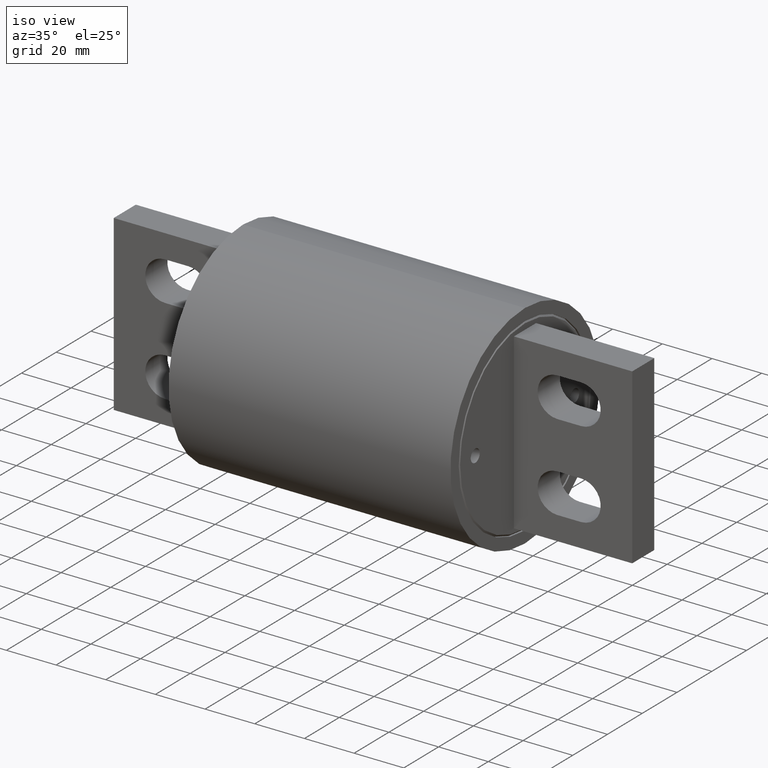
[diagram: clean part render]
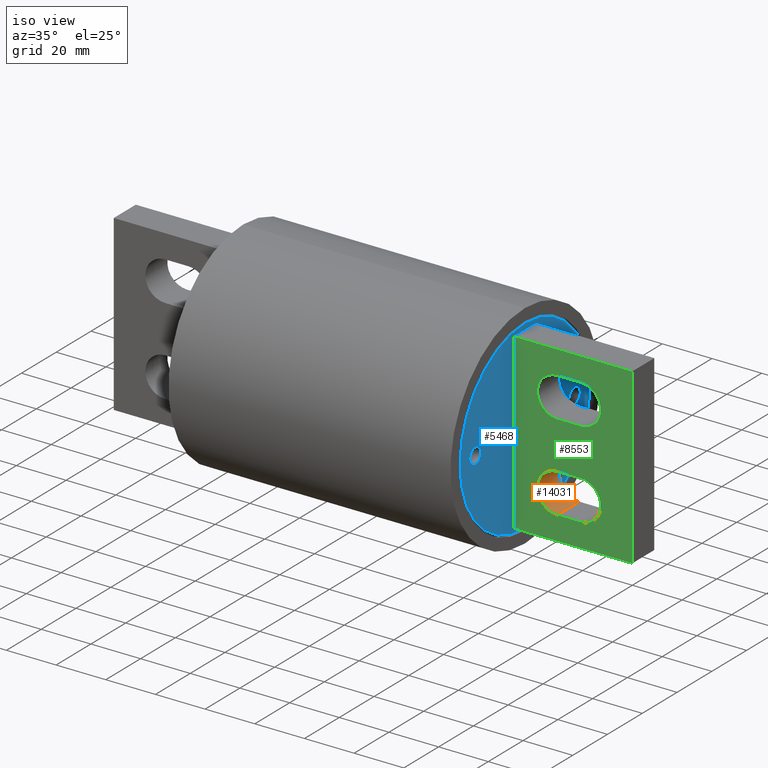
[diagram: same view with three faces highlighted in distinct colors, each labeled with its STEP entity id]
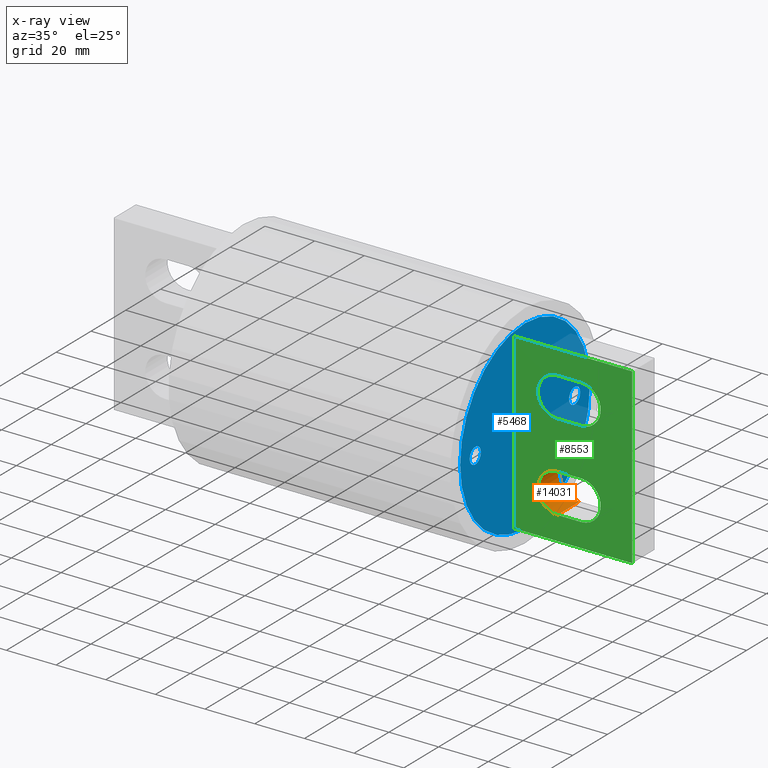
[diagram: x-ray of the same camera — body ghosted, the three highlighted faces saturated]
A machine part, iso view with three faces highlighted in distinct colors.
The next image is the same camera in x-ray (body ghosted, the three faces saturated) — at least one of them is partly hidden behind the body in this view.
Their STEP definitions:

[orange] entity #14031 — the highlighted cylindrical surface (edge-blend (fillet) strip) has radius 7.9375 mm, axis along (-0, -1, 0).
#508 = VERTEX_POINT ( 'NONE', #10394 ) ;
#557 = VECTOR ( 'NONE', #4330, 39.37007874015748100 ) ;
#881 = DIRECTION ( 'NONE',  ( -8.856302872696733300E-017, -1.000000000000000000, 5.504681343597395100E-017 ) ) ;
#1019 = EDGE_CURVE ( 'NONE', #9682, #11043, #7516, .T. ) ;
#1157 = DIRECTION ( 'NONE',  ( -8.856302872696733300E-017, -1.000000000000000000, 5.504681343597395100E-017 ) ) ;
#1758 = CARTESIAN_POINT ( 'NONE',  ( 2.922499999999998500, -0.2500000000000000600, -0.9999999999999993300 ) ) ;
#1910 = LINE ( 'NONE', #13106, #557 ) ;
#2103 = CARTESIAN_POINT ( 'NONE',  ( 2.922499999999998500, 0.2499999999999999700, -0.6874999999999993300 ) ) ;
#2313 = EDGE_CURVE ( 'NONE', #8745, #9682, #1910, .T. ) ;
#2403 = EDGE_CURVE ( 'NONE', #8745, #508, #11620, .T. ) ;
#2616 = AXIS2_PLACEMENT_3D ( 'NONE', #2103, #7184, #6245 ) ;
#2690 = CARTESIAN_POINT ( 'NONE',  ( 2.922499999999998500, 0.2499999999999999700, -0.3749999999999998300 ) ) ;
#2761 = AXIS2_PLACEMENT_3D ( 'NONE', #3628, #881, #4398 ) ;
#3048 = DIRECTION ( 'NONE',  ( 0.0000000000000000000, 1.092739197465705700E-016, 1.000000000000000000 ) ) ;
#3628 = CARTESIAN_POINT ( 'NONE',  ( 2.922499999999998500, -0.2500000000000000600, -0.6874999999999993300 ) ) ;
#3736 = AXIS2_PLACEMENT_3D ( 'NONE', #11274, #4116, #3048 ) ;
#3856 = ORIENTED_EDGE ( 'NONE', *, *, #8217, .F. ) ;
#4116 = DIRECTION ( 'NONE',  ( -8.856302872696733300E-017, -1.000000000000000000, 5.504681343597395100E-017 ) ) ;
#4330 = DIRECTION ( 'NONE',  ( -8.856302872696733300E-017, -1.000000000000000000, 5.504681343597395100E-017 ) ) ;
#4398 = DIRECTION ( 'NONE',  ( 0.0000000000000000000, 1.092739197465705700E-016, 1.000000000000000000 ) ) ;
#4754 = FACE_OUTER_BOUND ( 'NONE', #10181, .T. ) ;
#4856 = LINE ( 'NONE', #8586, #11062 ) ;
#6245 = DIRECTION ( 'NONE',  ( 0.0000000000000000000, -1.092739197465705700E-016, -1.000000000000000000 ) ) ;
#6396 = CYLINDRICAL_SURFACE ( 'NONE', #2616, 0.3124999999999998900 ) ;
#7184 = DIRECTION ( 'NONE',  ( -8.856302872696733300E-017, -1.000000000000000000, 5.504681343597395100E-017 ) ) ;
#7511 = CARTESIAN_POINT ( 'NONE',  ( 2.922499999999998500, -0.2500000000000000600, -0.3749999999999996700 ) ) ;
#7516 = CIRCLE ( 'NONE', #2761, 0.3124999999999998900 ) ;
#8217 = EDGE_CURVE ( 'NONE', #508, #11043, #4856, .T. ) ;
#8586 = CARTESIAN_POINT ( 'NONE',  ( 2.922499999999998500, 0.2499999999999999200, -0.9999999999999993300 ) ) ;
#8745 = VERTEX_POINT ( 'NONE', #2690 ) ;
#9308 = ORIENTED_EDGE ( 'NONE', *, *, #2403, .F. ) ;
#9682 = VERTEX_POINT ( 'NONE', #7511 ) ;
#9719 = ORIENTED_EDGE ( 'NONE', *, *, #1019, .T. ) ;
#10181 = EDGE_LOOP ( 'NONE', ( #9719, #3856, #9308, #11343 ) ) ;
#10394 = CARTESIAN_POINT ( 'NONE',  ( 2.922499999999998500, 0.2499999999999999200, -0.9999999999999993300 ) ) ;
#11043 = VERTEX_POINT ( 'NONE', #1758 ) ;
#11062 = VECTOR ( 'NONE', #1157, 39.37007874015748100 ) ;
#11274 = CARTESIAN_POINT ( 'NONE',  ( 2.922499999999998500, 0.2499999999999999700, -0.6874999999999993300 ) ) ;
#11343 = ORIENTED_EDGE ( 'NONE', *, *, #2313, .T. ) ;
#11620 = CIRCLE ( 'NONE', #3736, 0.3124999999999998900 ) ;
#13106 = CARTESIAN_POINT ( 'NONE',  ( 2.922499999999998500, 0.2499999999999999700, -0.3749999999999998300 ) ) ;
#14031 = ADVANCED_FACE ( 'NONE', ( #4754 ), #6396, .F. ) ;

[blue] entity #5468 — the highlighted planar face has unit normal (-1, -0, -0).
#114 = FACE_BOUND ( 'NONE', #8446, .T. ) ;
#126 = CARTESIAN_POINT ( 'NONE',  ( 2.234500000000001000, -1.125000000000000000, 3.195889402192244700E-016 ) ) ;
#232 = VERTEX_POINT ( 'NONE', #10133 ) ;
#316 = AXIS2_PLACEMENT_3D ( 'NONE', #3499, #11149, #2858 ) ;
#401 = DIRECTION ( 'NONE',  ( 0.0000000000000000000, -3.095585301892937400E-019, -1.000000000000000000 ) ) ;
#583 = CARTESIAN_POINT ( 'NONE',  ( 2.234500000000000600, 3.491018800803510000E-017, -3.844372892951594500E-017 ) ) ;
#629 = ORIENTED_EDGE ( 'NONE', *, *, #4369, .F. ) ;
#880 = VERTEX_POINT ( 'NONE', #9334 ) ;
#917 = CARTESIAN_POINT ( 'NONE',  ( 2.234500000000001000, 1.125000000000000000, -0.1249999999999992900 ) ) ;
#1207 = DIRECTION ( 'NONE',  ( 1.000000000000000000, 7.773569455895544200E-017, -8.847089727481713700E-017 ) ) ;
#1651 = AXIS2_PLACEMENT_3D ( 'NONE', #13655, #14279, #10879 ) ;
#1727 = CIRCLE ( 'NONE', #1651, 0.1249999999999996300 ) ;
#1728 = CARTESIAN_POINT ( 'NONE',  ( 2.234500000000000600, 3.467801911039316000E-017, -0.7500000000000007800 ) ) ;
#1769 = CARTESIAN_POINT ( 'NONE',  ( 2.234500000000000600, 3.512130692562417200E-017, 0.6820000000000007200 ) ) ;
#2160 = ORIENTED_EDGE ( 'NONE', *, *, #9178, .F. ) ;
#2201 = CARTESIAN_POINT ( 'NONE',  ( 2.234500000000000600, 3.491018800803510000E-017, -3.844372892951594500E-017 ) ) ;
#2453 = DIRECTION ( 'NONE',  ( 1.000000000000000000, 7.773569455895544200E-017, -8.847089727481713700E-017 ) ) ;
#2858 = DIRECTION ( 'NONE',  ( 0.0000000000000000000, 3.095585301892545500E-019, 1.000000000000000000 ) ) ;
#2879 = AXIS2_PLACEMENT_3D ( 'NONE', #12906, #13448, #5567 ) ;
#2923 = EDGE_LOOP ( 'NONE', ( #2160, #12887 ) ) ;
#2966 = CARTESIAN_POINT ( 'NONE',  ( 2.234500000000000600, 3.514235690567704100E-017, 0.7500000000000007800 ) ) ;
#3040 = DIRECTION ( 'NONE',  ( 0.0000000000000000000, -3.095585301892937400E-019, -1.000000000000000000 ) ) ;
#3071 = FACE_BOUND ( 'NONE', #5000, .T. ) ;
#3243 = EDGE_LOOP ( 'NONE', ( #6279, #7152 ) ) ;
#3247 = VERTEX_POINT ( 'NONE', #12434 ) ;
#3331 = EDGE_CURVE ( 'NONE', #5672, #10434, #1727, .T. ) ;
#3499 = CARTESIAN_POINT ( 'NONE',  ( 2.234500000000000600, 3.491018800803510000E-017, -3.844372892951594500E-017 ) ) ;
#3618 = CIRCLE ( 'NONE', #5659, 0.06800000000000006000 ) ;
#3761 = CIRCLE ( 'NONE', #5578, 0.06800000000000006000 ) ;
#3846 = CARTESIAN_POINT ( 'NONE',  ( 2.234500000000001000, 1.125000000000000000, 3.202849785804661900E-016 ) ) ;
#4369 = EDGE_CURVE ( 'NONE', #11758, #3247, #13343, .T. ) ;
#4576 = DIRECTION ( 'NONE',  ( 0.0000000000000000000, 0.0000000000000000000, -1.000000000000000000 ) ) ;
#4643 = AXIS2_PLACEMENT_3D ( 'NONE', #583, #5504, #11780 ) ;
#4783 = DIRECTION ( 'NONE',  ( 0.0000000000000000000, -3.095585301892937400E-019, -1.000000000000000000 ) ) ;
#5000 = EDGE_LOOP ( 'NONE', ( #8370, #10661 ) ) ;
#5123 = FACE_BOUND ( 'NONE', #5764, .T. ) ;
#5468 = ADVANCED_FACE ( 'NONE', ( #3071, #5123, #114, #7199, #12430 ), #6091, .F. ) ;
#5504 = DIRECTION ( 'NONE',  ( -1.000000000000000000, -7.773569455895544200E-017, -5.898059818321142900E-017 ) ) ;
#5567 = DIRECTION ( 'NONE',  ( 0.0000000000000000000, 0.0000000000000000000, -1.000000000000000000 ) ) ;
#5578 = AXIS2_PLACEMENT_3D ( 'NONE', #12267, #7968, #401 ) ;
#5646 = CARTESIAN_POINT ( 'NONE',  ( 2.234500000000000600, 3.467801911039316000E-017, -0.7500000000000007800 ) ) ;
#5659 = AXIS2_PLACEMENT_3D ( 'NONE', #2966, #6845, #3040 ) ;
#5672 = VERTEX_POINT ( 'NONE', #6189 ) ;
#5764 = EDGE_LOOP ( 'NONE', ( #629, #6187 ) ) ;
#6081 = CIRCLE ( 'NONE', #12795, 0.06800000000000006000 ) ;
#6091 = PLANE ( 'NONE',  #4643 ) ;
#6187 = ORIENTED_EDGE ( 'NONE', *, *, #10145, .F. ) ;
#6189 = CARTESIAN_POINT ( 'NONE',  ( 2.234500000000001000, 1.124999999999999800, 0.1249999999999998100 ) ) ;
#6279 = ORIENTED_EDGE ( 'NONE', *, *, #7860, .T. ) ;
#6840 = VERTEX_POINT ( 'NONE', #9620 ) ;
#6845 = DIRECTION ( 'NONE',  ( 1.000000000000000000, 7.773569455895544200E-017, -8.847089727481713700E-017 ) ) ;
#6859 = CIRCLE ( 'NONE', #9997, 1.468500000000001500 ) ;
#6970 = VERTEX_POINT ( 'NONE', #13995 ) ;
#7152 = ORIENTED_EDGE ( 'NONE', *, *, #11864, .T. ) ;
#7199 = FACE_BOUND ( 'NONE', #2923, .T. ) ;
#7335 = VERTEX_POINT ( 'NONE', #12776 ) ;
#7504 = CARTESIAN_POINT ( 'NONE',  ( 2.234500000000000600, 3.465696913034029000E-017, -0.8180000000000008400 ) ) ;
#7676 = AXIS2_PLACEMENT_3D ( 'NONE', #126, #13912, #10082 ) ;
#7860 = EDGE_CURVE ( 'NONE', #7335, #880, #6859, .T. ) ;
#7911 = DIRECTION ( 'NONE',  ( 1.000000000000000000, 7.773569455895544200E-017, -8.847089727481713700E-017 ) ) ;
#7968 = DIRECTION ( 'NONE',  ( 1.000000000000000000, 7.773569455895544200E-017, -8.847089727481713700E-017 ) ) ;
#8045 = EDGE_CURVE ( 'NONE', #8647, #232, #3761, .T. ) ;
#8370 = ORIENTED_EDGE ( 'NONE', *, *, #8045, .F. ) ;
#8390 = EDGE_CURVE ( 'NONE', #6840, #6970, #12749, .T. ) ;
#8429 = EDGE_CURVE ( 'NONE', #232, #8647, #3618, .T. ) ;
#8446 = EDGE_LOOP ( 'NONE', ( #11378, #12678 ) ) ;
#8647 = VERTEX_POINT ( 'NONE', #1769 ) ;
#8860 = EDGE_CURVE ( 'NONE', #10434, #5672, #9603, .T. ) ;
#9178 = EDGE_CURVE ( 'NONE', #6970, #6840, #13758, .T. ) ;
#9228 = AXIS2_PLACEMENT_3D ( 'NONE', #5646, #7911, #11437 ) ;
#9334 = CARTESIAN_POINT ( 'NONE',  ( 2.234500000000000600, 2.149612751636251200E-016, -1.468499999999999900 ) ) ;
#9603 = CIRCLE ( 'NONE', #11683, 0.1249999999999996300 ) ;
#9620 = CARTESIAN_POINT ( 'NONE',  ( 2.234500000000001000, -1.125000000000000200, 0.1249999999999998100 ) ) ;
#9776 = CIRCLE ( 'NONE', #316, 1.468500000000001500 ) ;
#9997 = AXIS2_PLACEMENT_3D ( 'NONE', #2201, #1207, #13561 ) ;
#10082 = DIRECTION ( 'NONE',  ( 0.0000000000000000000, 0.0000000000000000000, -1.000000000000000000 ) ) ;
#10133 = CARTESIAN_POINT ( 'NONE',  ( 2.234500000000000600, 3.183065093608857800E-017, 0.8180000000000007300 ) ) ;
#10145 = EDGE_CURVE ( 'NONE', #3247, #11758, #6081, .T. ) ;
#10434 = VERTEX_POINT ( 'NONE', #917 ) ;
#10661 = ORIENTED_EDGE ( 'NONE', *, *, #8429, .F. ) ;
#10879 = DIRECTION ( 'NONE',  ( 0.0000000000000000000, 0.0000000000000000000, -1.000000000000000000 ) ) ;
#11149 = DIRECTION ( 'NONE',  ( 1.000000000000000000, 7.773569455895544200E-017, -8.847089727481713700E-017 ) ) ;
#11378 = ORIENTED_EDGE ( 'NONE', *, *, #8860, .F. ) ;
#11437 = DIRECTION ( 'NONE',  ( 0.0000000000000000000, -3.095585301892937400E-019, -1.000000000000000000 ) ) ;
#11683 = AXIS2_PLACEMENT_3D ( 'NONE', #3846, #2453, #4576 ) ;
#11758 = VERTEX_POINT ( 'NONE', #7504 ) ;
#11780 = DIRECTION ( 'NONE',  ( -5.898059818321142900E-017, 3.095585301892571000E-019, 1.000000000000000000 ) ) ;
#11864 = EDGE_CURVE ( 'NONE', #880, #7335, #9776, .T. ) ;
#12267 = CARTESIAN_POINT ( 'NONE',  ( 2.234500000000000600, 3.514235690567704100E-017, 0.7500000000000007800 ) ) ;
#12430 = FACE_OUTER_BOUND ( 'NONE', #3243, .T. ) ;
#12434 = CARTESIAN_POINT ( 'NONE',  ( 2.234500000000000600, 3.136631314080469000E-017, -0.6820000000000008300 ) ) ;
#12678 = ORIENTED_EDGE ( 'NONE', *, *, #3331, .F. ) ;
#12749 = CIRCLE ( 'NONE', #2879, 0.1249999999999996300 ) ;
#12776 = CARTESIAN_POINT ( 'NONE',  ( 2.234500000000000600, 3.536477470961802000E-017, 1.468500000000001500 ) ) ;
#12795 = AXIS2_PLACEMENT_3D ( 'NONE', #1728, #13652, #4783 ) ;
#12887 = ORIENTED_EDGE ( 'NONE', *, *, #8390, .F. ) ;
#12906 = CARTESIAN_POINT ( 'NONE',  ( 2.234500000000001000, -1.125000000000000000, 3.195889402192244700E-016 ) ) ;
#13343 = CIRCLE ( 'NONE', #9228, 0.06800000000000006000 ) ;
#13448 = DIRECTION ( 'NONE',  ( 1.000000000000000000, 7.773569455895544200E-017, -8.847089727481713700E-017 ) ) ;
#13561 = DIRECTION ( 'NONE',  ( 0.0000000000000000000, 3.095585301892545500E-019, 1.000000000000000000 ) ) ;
#13652 = DIRECTION ( 'NONE',  ( 1.000000000000000000, 7.773569455895544200E-017, -8.847089727481713700E-017 ) ) ;
#13655 = CARTESIAN_POINT ( 'NONE',  ( 2.234500000000001000, 1.125000000000000000, 3.202849785804661900E-016 ) ) ;
#13758 = CIRCLE ( 'NONE', #7676, 0.1249999999999996300 ) ;
#13912 = DIRECTION ( 'NONE',  ( 1.000000000000000000, 7.773569455895544200E-017, -8.847089727481713700E-017 ) ) ;
#13995 = CARTESIAN_POINT ( 'NONE',  ( 2.234500000000001000, -1.125000000000000000, -0.1249999999999992900 ) ) ;
#14279 = DIRECTION ( 'NONE',  ( 1.000000000000000000, 7.773569455895544200E-017, -8.847089727481713700E-017 ) ) ;

[green] entity #8553 — the highlighted planar face has unit normal (0, 1, -0).
#3 = DIRECTION ( 'NONE',  ( 3.455511176566954200E-017, -5.582070976144707800E-017, -1.000000000000000000 ) ) ;
#180 = FACE_BOUND ( 'NONE', #13610, .T. ) ;
#231 = CARTESIAN_POINT ( 'NONE',  ( 2.922499999999998500, -0.2499999999999999700, 0.3749999999999996700 ) ) ;
#385 = CARTESIAN_POINT ( 'NONE',  ( 3.297499999999999000, -0.2499999999999998900, 0.3749999999999996100 ) ) ;
#411 = ORIENTED_EDGE ( 'NONE', *, *, #3367, .T. ) ;
#847 = DIRECTION ( 'NONE',  ( -8.856302872696733300E-017, -1.000000000000000000, 5.504681343597395100E-017 ) ) ;
#881 = DIRECTION ( 'NONE',  ( -8.856302872696733300E-017, -1.000000000000000000, 5.504681343597395100E-017 ) ) ;
#994 = ORIENTED_EDGE ( 'NONE', *, *, #1019, .F. ) ;
#1019 = EDGE_CURVE ( 'NONE', #9682, #11043, #7516, .T. ) ;
#1555 = VERTEX_POINT ( 'NONE', #10083 ) ;
#1687 = CARTESIAN_POINT ( 'NONE',  ( 2.234499999999999700, -0.2500000000000000600, -1.374999999999998200 ) ) ;
#1702 = EDGE_LOOP ( 'NONE', ( #411, #12076, #3677, #13258 ) ) ;
#1718 = DIRECTION ( 'NONE',  ( 0.0000000000000000000, -1.092739197465705700E-016, -1.000000000000000000 ) ) ;
#1731 = ORIENTED_EDGE ( 'NONE', *, *, #2333, .F. ) ;
#1758 = CARTESIAN_POINT ( 'NONE',  ( 2.922499999999998500, -0.2500000000000000600, -0.9999999999999993300 ) ) ;
#1806 = CARTESIAN_POINT ( 'NONE',  ( 2.922499999999999400, -0.2499999999999999700, 0.6874999999999995600 ) ) ;
#1880 = CIRCLE ( 'NONE', #14129, 0.3124999999999997200 ) ;
#2031 = CARTESIAN_POINT ( 'NONE',  ( 2.922499999999998500, -0.2500000000000000600, -0.3749999999999996700 ) ) ;
#2280 = DIRECTION ( 'NONE',  ( 8.856302872696733300E-017, 1.000000000000000000, -5.582070976144707800E-017 ) ) ;
#2310 = EDGE_CURVE ( 'NONE', #5970, #1555, #10029, .T. ) ;
#2333 = EDGE_CURVE ( 'NONE', #1555, #12511, #3406, .T. ) ;
#2427 = DIRECTION ( 'NONE',  ( 8.790956814906570500E-017, 5.582070976144706500E-017, 1.000000000000000000 ) ) ;
#2755 = VECTOR ( 'NONE', #12092, 39.37007874015748100 ) ;
#2761 = AXIS2_PLACEMENT_3D ( 'NONE', #3628, #881, #4398 ) ;
#2790 = VERTEX_POINT ( 'NONE', #3831 ) ;
#2892 = VERTEX_POINT ( 'NONE', #7802 ) ;
#2936 = DIRECTION ( 'NONE',  ( 1.000000000000000000, 6.593177783157923600E-017, -2.353610636070945400E-016 ) ) ;
#3164 = CARTESIAN_POINT ( 'NONE',  ( 2.922499999999998500, -0.2499999999999999700, 0.3749999999999996700 ) ) ;
#3254 = CARTESIAN_POINT ( 'NONE',  ( 3.297499999999999400, -0.2499999999999998900, 0.6874999999999994400 ) ) ;
#3257 = CARTESIAN_POINT ( 'NONE',  ( 2.234499999999999700, -0.2499999999999999200, 1.374999999999998900 ) ) ;
#3273 = LINE ( 'NONE', #11479, #5217 ) ;
#3367 = EDGE_CURVE ( 'NONE', #5957, #4952, #8517, .T. ) ;
#3406 = LINE ( 'NONE', #8836, #3598 ) ;
#3412 = CIRCLE ( 'NONE', #7212, 0.3124999999999998900 ) ;
#3582 = LINE ( 'NONE', #3164, #7431 ) ;
#3598 = VECTOR ( 'NONE', #6540, 39.37007874015748100 ) ;
#3628 = CARTESIAN_POINT ( 'NONE',  ( 2.922499999999998500, -0.2500000000000000600, -0.6874999999999993300 ) ) ;
#3677 = ORIENTED_EDGE ( 'NONE', *, *, #13409, .T. ) ;
#3793 = EDGE_CURVE ( 'NONE', #8884, #5970, #3582, .T. ) ;
#3831 = CARTESIAN_POINT ( 'NONE',  ( 3.297499999999999000, -0.2499999999999999700, -0.3749999999999997800 ) ) ;
#4155 = CARTESIAN_POINT ( 'NONE',  ( 4.109499999999997900, -0.2500000000000000600, -1.374999999999998700 ) ) ;
#4170 = CARTESIAN_POINT ( 'NONE',  ( 2.922499999999998500, -0.2500000000000000600, -0.9999999999999993300 ) ) ;
#4296 = DIRECTION ( 'NONE',  ( -8.856302872696733300E-017, -1.000000000000000000, 5.504681343597395100E-017 ) ) ;
#4398 = DIRECTION ( 'NONE',  ( 0.0000000000000000000, 1.092739197465705700E-016, 1.000000000000000000 ) ) ;
#4400 = DIRECTION ( 'NONE',  ( 0.0000000000000000000, 1.092739197465706300E-016, 1.000000000000000000 ) ) ;
#4411 = VERTEX_POINT ( 'NONE', #4155 ) ;
#4499 = LINE ( 'NONE', #3257, #2755 ) ;
#4746 = VECTOR ( 'NONE', #7767, 39.37007874015748100 ) ;
#4821 = EDGE_CURVE ( 'NONE', #2790, #9682, #8340, .T. ) ;
#4952 = VERTEX_POINT ( 'NONE', #1687 ) ;
#5211 = ORIENTED_EDGE ( 'NONE', *, *, #4821, .F. ) ;
#5217 = VECTOR ( 'NONE', #2936, 39.37007874015748100 ) ;
#5279 = ORIENTED_EDGE ( 'NONE', *, *, #7944, .F. ) ;
#5512 = CARTESIAN_POINT ( 'NONE',  ( 3.297499999999999000, -0.2499999999999999700, -0.6874999999999991100 ) ) ;
#5514 = ORIENTED_EDGE ( 'NONE', *, *, #5905, .F. ) ;
#5905 = EDGE_CURVE ( 'NONE', #12511, #8884, #3412, .T. ) ;
#5957 = VERTEX_POINT ( 'NONE', #7904 ) ;
#5970 = VERTEX_POINT ( 'NONE', #385 ) ;
#6265 = VERTEX_POINT ( 'NONE', #8834 ) ;
#6310 = DIRECTION ( 'NONE',  ( 0.0000000000000000000, -1.092739197465706300E-016, -1.000000000000000000 ) ) ;
#6450 = CARTESIAN_POINT ( 'NONE',  ( 4.109499999999997900, -0.2500000000000000600, -1.374999999999998700 ) ) ;
#6540 = DIRECTION ( 'NONE',  ( -1.000000000000000000, -6.593177783157921100E-017, 5.996074627623295400E-016 ) ) ;
#6655 = ORIENTED_EDGE ( 'NONE', *, *, #8996, .F. ) ;
#7212 = AXIS2_PLACEMENT_3D ( 'NONE', #1806, #4296, #1718 ) ;
#7417 = LINE ( 'NONE', #4170, #11694 ) ;
#7431 = VECTOR ( 'NONE', #8603, 39.37007874015748100 ) ;
#7511 = CARTESIAN_POINT ( 'NONE',  ( 2.922499999999998500, -0.2500000000000000600, -0.3749999999999996700 ) ) ;
#7516 = CIRCLE ( 'NONE', #2761, 0.3124999999999998900 ) ;
#7725 = VECTOR ( 'NONE', #9425, 39.37007874015748100 ) ;
#7767 = DIRECTION ( 'NONE',  ( -1.000000000000000000, -6.593177783157921100E-017, 5.996074627623295400E-016 ) ) ;
#7802 = CARTESIAN_POINT ( 'NONE',  ( 3.297499999999999000, -0.2500000000000000000, -0.9999999999999992200 ) ) ;
#7904 = CARTESIAN_POINT ( 'NONE',  ( 2.234499999999999700, -0.2499999999999999200, 1.374999999999998900 ) ) ;
#7944 = EDGE_CURVE ( 'NONE', #11043, #2892, #7417, .T. ) ;
#8340 = LINE ( 'NONE', #2031, #4746 ) ;
#8517 = LINE ( 'NONE', #11146, #10243 ) ;
#8553 = ADVANCED_FACE ( 'NONE', ( #12568, #180, #11375 ), #14152, .F. ) ;
#8603 = DIRECTION ( 'NONE',  ( 1.000000000000000000, 6.593177783157922400E-017, 1.288853355481404800E-016 ) ) ;
#8834 = CARTESIAN_POINT ( 'NONE',  ( 4.109499999999999700, -0.2499999999999999200, 1.374999999999999100 ) ) ;
#8836 = CARTESIAN_POINT ( 'NONE',  ( 2.922499999999999400, -0.2499999999999999200, 0.9999999999999995600 ) ) ;
#8884 = VERTEX_POINT ( 'NONE', #231 ) ;
#8996 = EDGE_CURVE ( 'NONE', #2892, #2790, #1880, .T. ) ;
#9237 = ORIENTED_EDGE ( 'NONE', *, *, #3793, .F. ) ;
#9425 = DIRECTION ( 'NONE',  ( -1.143035889327110300E-017, 5.582070976144707800E-017, 1.000000000000000000 ) ) ;
#9657 = LINE ( 'NONE', #6450, #7725 ) ;
#9682 = VERTEX_POINT ( 'NONE', #7511 ) ;
#10029 = CIRCLE ( 'NONE', #11710, 0.3124999999999997200 ) ;
#10083 = CARTESIAN_POINT ( 'NONE',  ( 3.297499999999999400, -0.2499999999999998600, 0.9999999999999994400 ) ) ;
#10086 = AXIS2_PLACEMENT_3D ( 'NONE', #12208, #2280, #2427 ) ;
#10170 = CARTESIAN_POINT ( 'NONE',  ( 2.922499999999999400, -0.2499999999999999200, 0.9999999999999995600 ) ) ;
#10202 = DIRECTION ( 'NONE',  ( 1.000000000000000000, 6.593177783157922400E-017, 1.288853355481404800E-016 ) ) ;
#10243 = VECTOR ( 'NONE', #3, 39.37007874015748100 ) ;
#10280 = EDGE_CURVE ( 'NONE', #6265, #5957, #4499, .T. ) ;
#10328 = DIRECTION ( 'NONE',  ( -8.856302872696733300E-017, -1.000000000000000000, 5.504681343597395100E-017 ) ) ;
#11043 = VERTEX_POINT ( 'NONE', #1758 ) ;
#11146 = CARTESIAN_POINT ( 'NONE',  ( 2.234499999999999700, -0.2500000000000000600, -1.374999999999998200 ) ) ;
#11375 = FACE_OUTER_BOUND ( 'NONE', #1702, .T. ) ;
#11479 = CARTESIAN_POINT ( 'NONE',  ( 2.234499999999999700, -0.2500000000000000600, -1.374999999999998200 ) ) ;
#11694 = VECTOR ( 'NONE', #10202, 39.37007874015748100 ) ;
#11710 = AXIS2_PLACEMENT_3D ( 'NONE', #3254, #847, #6310 ) ;
#12076 = ORIENTED_EDGE ( 'NONE', *, *, #13837, .T. ) ;
#12092 = DIRECTION ( 'NONE',  ( -1.000000000000000000, -6.593177783157923600E-017, -5.603605571709353500E-017 ) ) ;
#12208 = CARTESIAN_POINT ( 'NONE',  ( 2.234499999999999700, -0.2500000000000000000, 2.761646743438302600E-016 ) ) ;
#12511 = VERTEX_POINT ( 'NONE', #10170 ) ;
#12568 = FACE_BOUND ( 'NONE', #13114, .T. ) ;
#12875 = ORIENTED_EDGE ( 'NONE', *, *, #2310, .F. ) ;
#13114 = EDGE_LOOP ( 'NONE', ( #5279, #994, #5211, #6655 ) ) ;
#13258 = ORIENTED_EDGE ( 'NONE', *, *, #10280, .T. ) ;
#13409 = EDGE_CURVE ( 'NONE', #4411, #6265, #9657, .T. ) ;
#13610 = EDGE_LOOP ( 'NONE', ( #9237, #5514, #1731, #12875 ) ) ;
#13837 = EDGE_CURVE ( 'NONE', #4952, #4411, #3273, .T. ) ;
#14129 = AXIS2_PLACEMENT_3D ( 'NONE', #5512, #10328, #4400 ) ;
#14152 = PLANE ( 'NONE',  #10086 ) ;